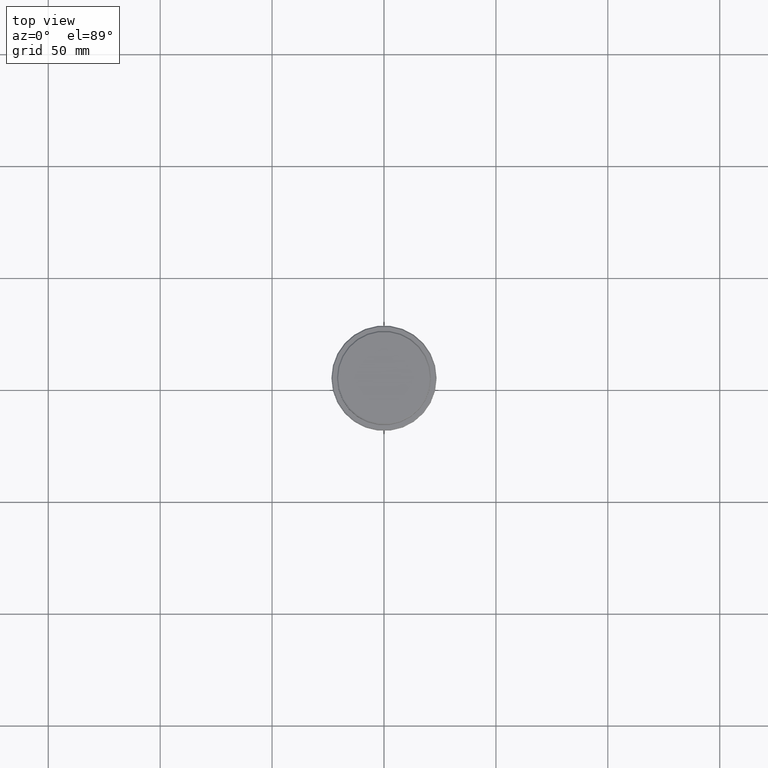
[diagram: clean part render]
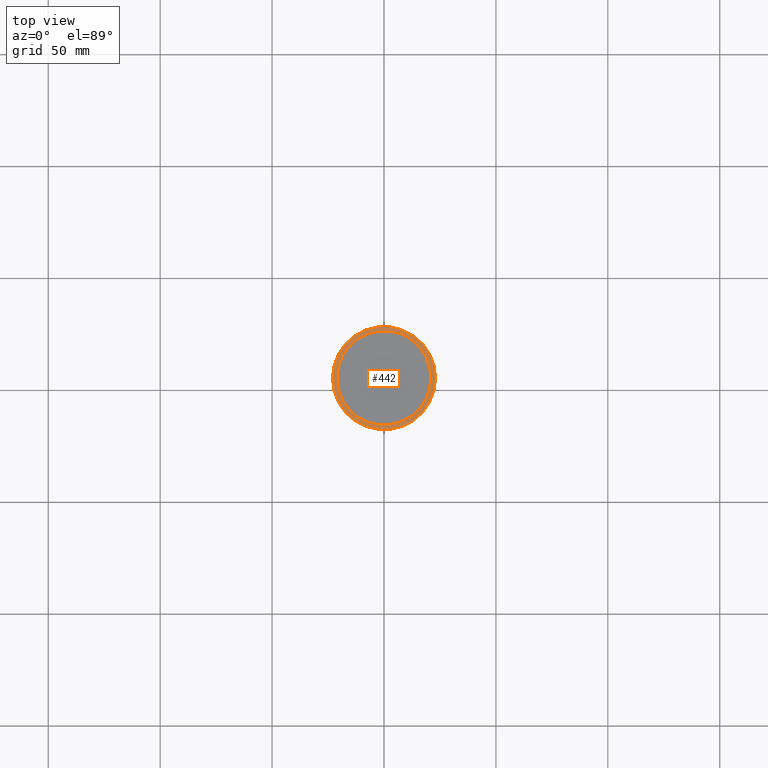
[diagram: same view with one face highlighted and labeled with its STEP entity id]
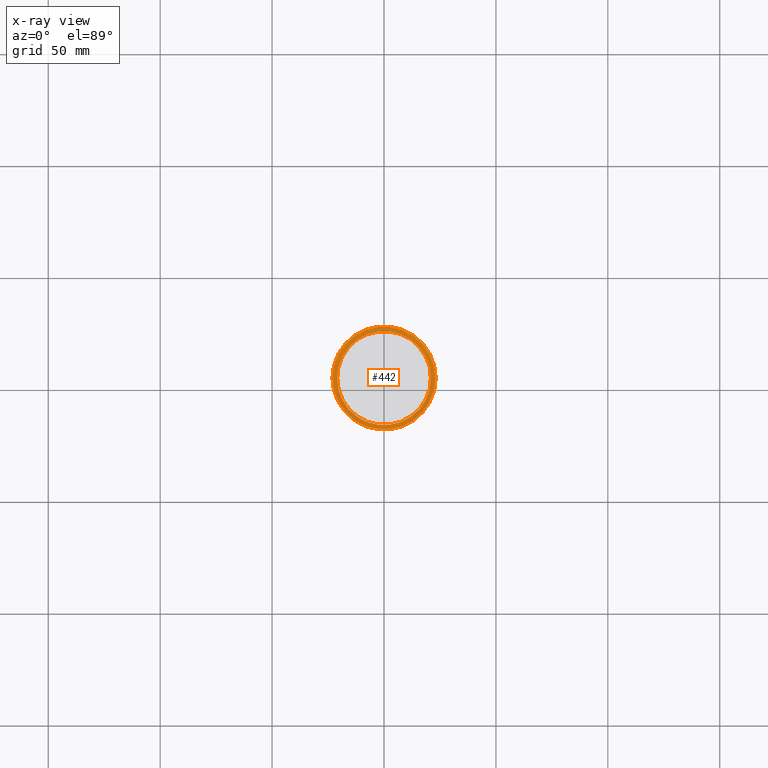
[diagram: x-ray of the same camera — body ghosted, the highlighted face saturated]
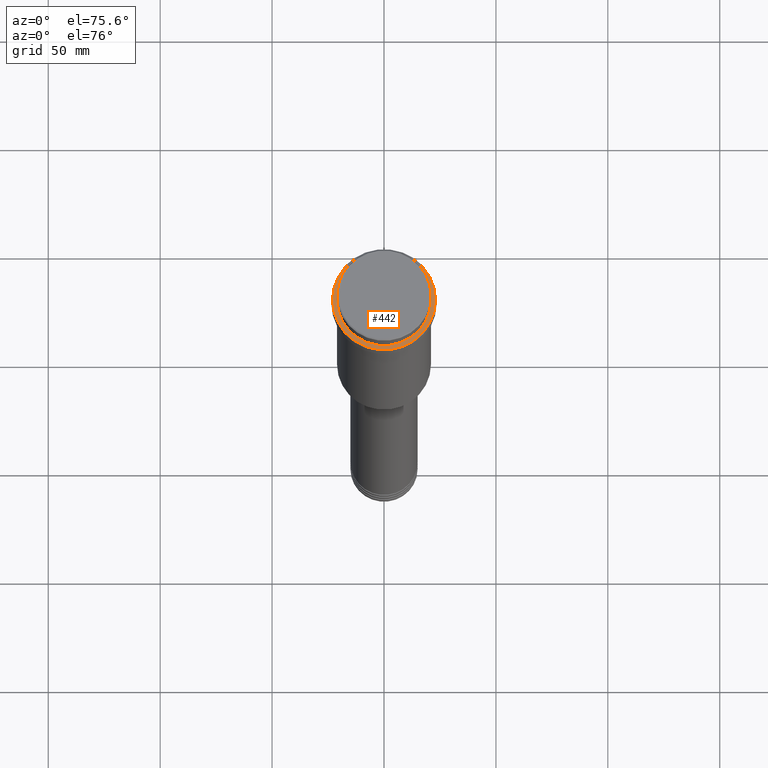
[diagram: same view with one face highlighted and labeled with its STEP entity id]
A machine part, top view. The second image highlights one B-rep face of the part: STEP entity #442.
The next image is the same camera in x-ray: the body ghosted, the highlighted face saturated — about 0% of this face is hidden behind the body in this view.
A second angle (auxiliary view) of the same face is appended — the face is thin or edge-on in the first view.
In plain terms, the highlighted planar face has unit normal (0, -0, 1).
Its self-contained STEP definition (entity closure, byte-faithful):
#73 = AXIS2_PLACEMENT_3D ( 'NONE', #359, #1019, #502 ) ;
#78 = DIRECTION ( 'NONE',  ( -0.000000000000000000, -0.000000000000000000, 1.000000000000000000 ) ) ;
#97 = CIRCLE ( 'NONE', #1172, 23.00000000000002487 ) ;
#104 = ORIENTED_EDGE ( 'NONE', *, *, #1134, .T. ) ;
#151 = CARTESIAN_POINT ( 'NONE',  ( 20.99999999999999289, 0.000000000000000000, -9.000000000000001776 ) ) ;
#213 = ORIENTED_EDGE ( 'NONE', *, *, #1224, .T. ) ;
#237 = VERTEX_POINT ( 'NONE', #1382 ) ;
#265 = EDGE_LOOP ( 'NONE', ( #355, #1210 ) ) ;
#292 = DIRECTION ( 'NONE',  ( -0.000000000000000000, -0.000000000000000000, 1.000000000000000000 ) ) ;
#301 = DIRECTION ( 'NONE',  ( 1.000000000000000000, 0.000000000000000000, 0.000000000000000000 ) ) ;
#354 = DIRECTION ( 'NONE',  ( 1.000000000000000000, 0.000000000000000000, 0.000000000000000000 ) ) ;
#355 = ORIENTED_EDGE ( 'NONE', *, *, #1336, .T. ) ;
#359 = CARTESIAN_POINT ( 'NONE',  ( 0.000000000000000000, 0.000000000000000000, -9.000000000000001776 ) ) ;
#363 = FACE_OUTER_BOUND ( 'NONE', #265, .T. ) ;
#401 = DIRECTION ( 'NONE',  ( 1.000000000000000000, 0.000000000000000000, 0.000000000000000000 ) ) ;
#433 = VERTEX_POINT ( 'NONE', #1413 ) ;
#439 = PLANE ( 'NONE',  #876 ) ;
#442 = ADVANCED_FACE ( 'NONE', ( #363, #913 ), #439, .T. ) ;
#448 = CIRCLE ( 'NONE', #1381, 20.99999999999999289 ) ;
#463 = CARTESIAN_POINT ( 'NONE',  ( 0.000000000000000000, 0.000000000000000000, -9.000000000000001776 ) ) ;
#500 = CARTESIAN_POINT ( 'NONE',  ( -23.00000000000002487, 0.000000000000000000, -9.000000000000001776 ) ) ;
#502 = DIRECTION ( 'NONE',  ( 1.000000000000000000, 0.000000000000000000, 0.000000000000000000 ) ) ;
#551 = DIRECTION ( 'NONE',  ( 1.000000000000000000, 0.000000000000000000, 0.000000000000000000 ) ) ;
#605 = AXIS2_PLACEMENT_3D ( 'NONE', #1279, #78, #301 ) ;
#674 = CIRCLE ( 'NONE', #73, 20.99999999999999289 ) ;
#769 = DIRECTION ( 'NONE',  ( 0.000000000000000000, -0.000000000000000000, 1.000000000000000000 ) ) ;
#791 = VERTEX_POINT ( 'NONE', #500 ) ;
#821 = VERTEX_POINT ( 'NONE', #151 ) ;
#876 = AXIS2_PLACEMENT_3D ( 'NONE', #1090, #769, #551 ) ;
#913 = FACE_BOUND ( 'NONE', #963, .T. ) ;
#963 = EDGE_LOOP ( 'NONE', ( #213, #104 ) ) ;
#1019 = DIRECTION ( 'NONE',  ( 0.000000000000000000, 0.000000000000000000, -1.000000000000000000 ) ) ;
#1090 = CARTESIAN_POINT ( 'NONE',  ( 0.000000000000000000, 20.49999999999999645, -9.000000000000001776 ) ) ;
#1105 = CIRCLE ( 'NONE', #605, 23.00000000000002487 ) ;
#1134 = EDGE_CURVE ( 'NONE', #433, #821, #448, .T. ) ;
#1172 = AXIS2_PLACEMENT_3D ( 'NONE', #1273, #292, #401 ) ;
#1210 = ORIENTED_EDGE ( 'NONE', *, *, #1415, .T. ) ;
#1224 = EDGE_CURVE ( 'NONE', #821, #433, #674, .T. ) ;
#1273 = CARTESIAN_POINT ( 'NONE',  ( 0.000000000000000000, 0.000000000000000000, -9.000000000000001776 ) ) ;
#1279 = CARTESIAN_POINT ( 'NONE',  ( 0.000000000000000000, 0.000000000000000000, -9.000000000000001776 ) ) ;
#1331 = DIRECTION ( 'NONE',  ( 0.000000000000000000, 0.000000000000000000, -1.000000000000000000 ) ) ;
#1336 = EDGE_CURVE ( 'NONE', #791, #237, #97, .T. ) ;
#1381 = AXIS2_PLACEMENT_3D ( 'NONE', #463, #1331, #354 ) ;
#1382 = CARTESIAN_POINT ( 'NONE',  ( 23.00000000000002487, 2.847303808017597717E-15, -9.000000000000001776 ) ) ;
#1413 = CARTESIAN_POINT ( 'NONE',  ( -20.99999999999999289, 2.571758278209440872E-15, -9.000000000000001776 ) ) ;
#1415 = EDGE_CURVE ( 'NONE', #237, #791, #1105, .T. ) ;